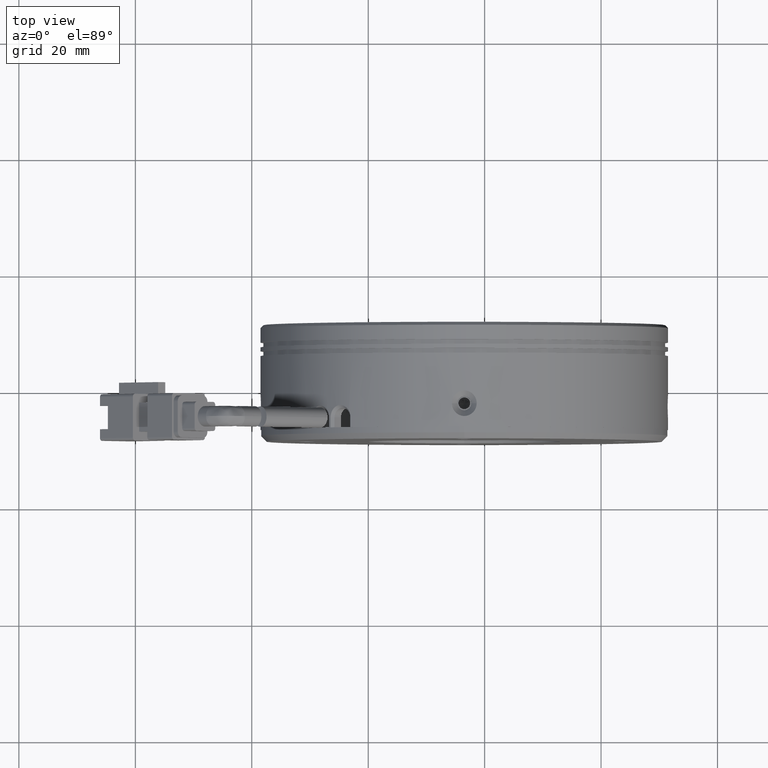
[diagram: clean part render]
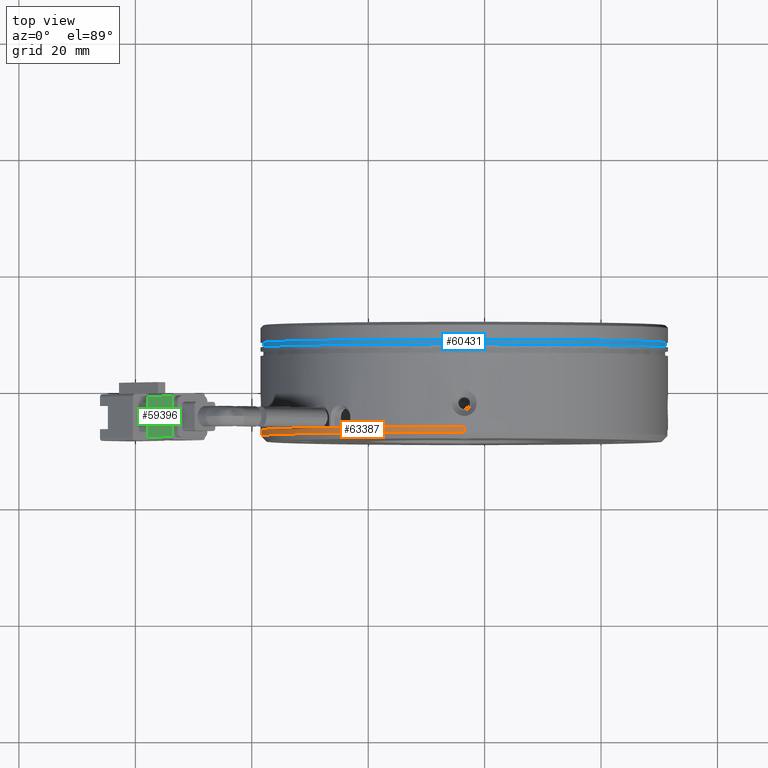
[diagram: same view with three faces highlighted in distinct colors, each labeled with its STEP entity id]
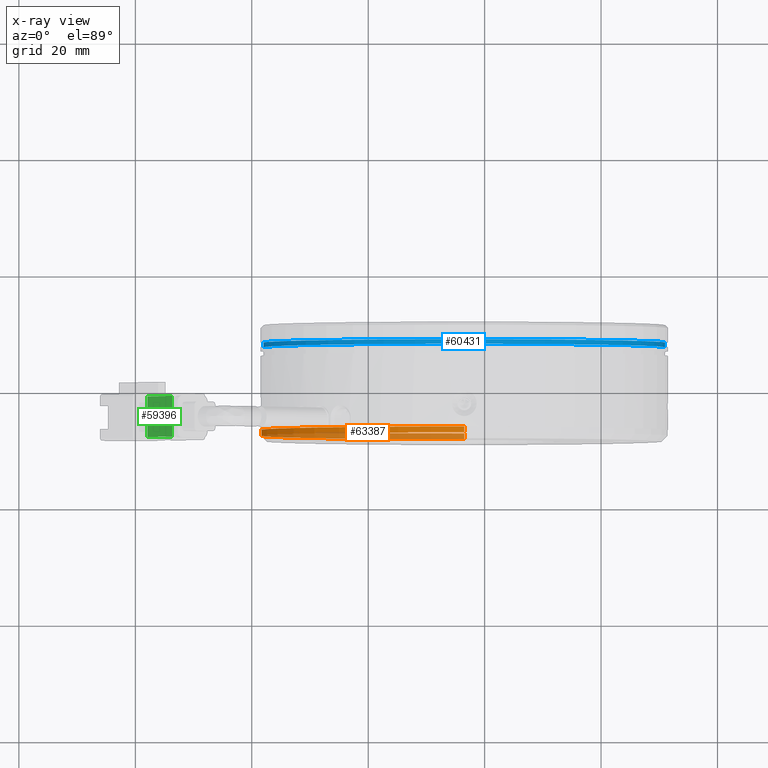
[diagram: x-ray of the same camera — body ghosted, the three highlighted faces saturated]
A machine part, top view with three faces highlighted in distinct colors.
The next image is the same camera in x-ray (body ghosted, the three faces saturated) — at least one of them is partly hidden behind the body in this view.
Their STEP definitions:

[orange] entity #63387 — the highlighted cylindrical surface (partial cylindrical patch) has radius 35 mm, axis along (-0, 1, -0).
#2203 = EDGE_CURVE ( 'NONE', #85091, #17409, #64279, .T. ) ;
#6455 = ORIENTED_EDGE ( 'NONE', *, *, #71386, .T. ) ;
#9520 = LINE ( 'NONE', #17303, #46748 ) ;
#14589 = CARTESIAN_POINT ( 'NONE',  ( -3.499229287090534200, 49.67432128801908700, -34.99999999999999300 ) ) ;
#16565 = CARTESIAN_POINT ( 'NONE',  ( -3.499229287090538600, 33.07623868994505000, 0.0000000000000000000 ) ) ;
#17303 = CARTESIAN_POINT ( 'NONE',  ( -3.499229287090538600, 49.67432128801908700, 34.99999999999999300 ) ) ;
#17409 = VERTEX_POINT ( 'NONE', #47789 ) ;
#17876 = CARTESIAN_POINT ( 'NONE',  ( -3.499229287090538600, 32.07623868994506500, 0.0000000000000000000 ) ) ;
#20009 = ORIENTED_EDGE ( 'NONE', *, *, #87400, .F. ) ;
#20289 = FACE_OUTER_BOUND ( 'NONE', #23436, .T. ) ;
#23436 = EDGE_LOOP ( 'NONE', ( #20009, #30836, #6455, #33496 ) ) ;
#23576 = DIRECTION ( 'NONE',  ( 0.0000000000000000000, 0.0000000000000000000, 1.000000000000000000 ) ) ;
#24912 = DIRECTION ( 'NONE',  ( 0.0000000000000000000, 0.0000000000000000000, 1.000000000000000000 ) ) ;
#27550 = CARTESIAN_POINT ( 'NONE',  ( -3.499229287090534200, 32.07623868994506500, -34.99999999999999300 ) ) ;
#28659 = DIRECTION ( 'NONE',  ( -0.0000000000000000000, 1.000000000000000000, -0.0000000000000000000 ) ) ;
#30836 = ORIENTED_EDGE ( 'NONE', *, *, #64595, .F. ) ;
#33496 = ORIENTED_EDGE ( 'NONE', *, *, #2203, .T. ) ;
#35325 = DIRECTION ( 'NONE',  ( 0.0000000000000000000, 0.0000000000000000000, 1.000000000000000000 ) ) ;
#40114 = LINE ( 'NONE', #14589, #75141 ) ;
#42018 = DIRECTION ( 'NONE',  ( -0.0000000000000000000, 1.000000000000000000, -0.0000000000000000000 ) ) ;
#44802 = DIRECTION ( 'NONE',  ( -0.0000000000000000000, 1.000000000000000000, -0.0000000000000000000 ) ) ;
#46748 = VECTOR ( 'NONE', #44802, 1000.000000000000000 ) ;
#47789 = CARTESIAN_POINT ( 'NONE',  ( -3.499229287090534200, 33.07623868994505000, -34.99999999999999300 ) ) ;
#59207 = VERTEX_POINT ( 'NONE', #27550 ) ;
#59461 = CIRCLE ( 'NONE', #64140, 34.99999999999999300 ) ;
#63387 = ADVANCED_FACE ( 'NONE', ( #20289 ), #67300, .T. ) ;
#63573 = VERTEX_POINT ( 'NONE', #79038 ) ;
#64020 = AXIS2_PLACEMENT_3D ( 'NONE', #77202, #42018, #35325 ) ;
#64140 = AXIS2_PLACEMENT_3D ( 'NONE', #17876, #66772, #24912 ) ;
#64279 = CIRCLE ( 'NONE', #82081, 34.99999999999999300 ) ;
#64595 = EDGE_CURVE ( 'NONE', #63573, #59207, #59461, .T. ) ;
#65445 = DIRECTION ( 'NONE',  ( 0.0000000000000000000, -1.000000000000000000, 0.0000000000000000000 ) ) ;
#66772 = DIRECTION ( 'NONE',  ( 0.0000000000000000000, -1.000000000000000000, 0.0000000000000000000 ) ) ;
#67300 = CYLINDRICAL_SURFACE ( 'NONE', #64020, 34.99999999999999300 ) ;
#69622 = CARTESIAN_POINT ( 'NONE',  ( -3.499229287090538600, 33.07623868994505000, 34.99999999999999300 ) ) ;
#71386 = EDGE_CURVE ( 'NONE', #63573, #85091, #9520, .T. ) ;
#75141 = VECTOR ( 'NONE', #28659, 1000.000000000000000 ) ;
#77202 = CARTESIAN_POINT ( 'NONE',  ( -3.499229287090538600, 49.67432128801908700, 0.0000000000000000000 ) ) ;
#79038 = CARTESIAN_POINT ( 'NONE',  ( -3.499229287090538600, 32.07623868994506500, 34.99999999999999300 ) ) ;
#82081 = AXIS2_PLACEMENT_3D ( 'NONE', #16565, #65445, #23576 ) ;
#85091 = VERTEX_POINT ( 'NONE', #69622 ) ;
#87400 = EDGE_CURVE ( 'NONE', #59207, #17409, #40114, .T. ) ;

[blue] entity #60431 — the highlighted cylindrical surface (partial cylindrical patch) has radius 34.5 mm, axis along (0, -1, 0).
#2250 = VERTEX_POINT ( 'NONE', #72791 ) ;
#2454 = CARTESIAN_POINT ( 'NONE',  ( -3.499229287090496400, 33.07623868994505000, -6.938893903907228400E-015 ) ) ;
#2779 = CIRCLE ( 'NONE', #14152, 34.50000000000000700 ) ;
#3738 = CARTESIAN_POINT ( 'NONE',  ( -3.499229287090496400, 48.07623868994505000, -6.938893903907228400E-015 ) ) ;
#7665 = EDGE_CURVE ( 'NONE', #50806, #39666, #53244, .T. ) ;
#9780 = DIRECTION ( 'NONE',  ( 1.000000000000000000, 0.0000000000000000000, 1.942890293094023700E-016 ) ) ;
#10745 = DIRECTION ( 'NONE',  ( 1.000000000000000000, 0.0000000000000000000, 1.942890293094023700E-016 ) ) ;
#14152 = AXIS2_PLACEMENT_3D ( 'NONE', #3738, #52620, #10745 ) ;
#23525 = CARTESIAN_POINT ( 'NONE',  ( -37.99922928709050800, 33.07623868994505000, -9.416833958023240500E-015 ) ) ;
#28289 = ORIENTED_EDGE ( 'NONE', *, *, #7665, .F. ) ;
#32427 = EDGE_CURVE ( 'NONE', #50806, #73390, #2779, .T. ) ;
#32491 = VECTOR ( 'NONE', #85294, 1000.000000000000000 ) ;
#32686 = DIRECTION ( 'NONE',  ( 0.0000000000000000000, -1.000000000000000000, 0.0000000000000000000 ) ) ;
#36127 = VECTOR ( 'NONE', #86526, 1000.000000000000000 ) ;
#37234 = CIRCLE ( 'NONE', #68501, 34.50000000000000700 ) ;
#39666 = VERTEX_POINT ( 'NONE', #58672 ) ;
#42321 = ORIENTED_EDGE ( 'NONE', *, *, #65568, .F. ) ;
#49009 = EDGE_CURVE ( 'NONE', #73390, #2250, #73360, .T. ) ;
#50068 = ORIENTED_EDGE ( 'NONE', *, *, #49009, .T. ) ;
#50806 = VERTEX_POINT ( 'NONE', #63345 ) ;
#52620 = DIRECTION ( 'NONE',  ( 0.0000000000000000000, -1.000000000000000000, 0.0000000000000000000 ) ) ;
#53244 = LINE ( 'NONE', #64483, #32491 ) ;
#57008 = CYLINDRICAL_SURFACE ( 'NONE', #77155, 34.50000000000000700 ) ;
#58672 = CARTESIAN_POINT ( 'NONE',  ( 31.00077071290951400, 47.27623868994506000, -2.359223927328452200E-016 ) ) ;
#60431 = ADVANCED_FACE ( 'NONE', ( #65809 ), #57008, .T. ) ;
#63345 = CARTESIAN_POINT ( 'NONE',  ( 31.00077071290951400, 48.07623868994505000, -2.359223927328452200E-016 ) ) ;
#64238 = ORIENTED_EDGE ( 'NONE', *, *, #32427, .T. ) ;
#64483 = CARTESIAN_POINT ( 'NONE',  ( 31.00077071290951400, 33.07623868994505000, -2.359223927328452200E-016 ) ) ;
#65568 = EDGE_CURVE ( 'NONE', #39666, #2250, #37234, .T. ) ;
#65809 = FACE_OUTER_BOUND ( 'NONE', #89769, .T. ) ;
#68501 = AXIS2_PLACEMENT_3D ( 'NONE', #74570, #32686, #81575 ) ;
#72471 = DIRECTION ( 'NONE',  ( 0.0000000000000000000, -1.000000000000000000, 0.0000000000000000000 ) ) ;
#72791 = CARTESIAN_POINT ( 'NONE',  ( -37.99922928709050800, 47.27623868994506000, -9.416833958023240500E-015 ) ) ;
#72849 = CARTESIAN_POINT ( 'NONE',  ( -37.99922928709050800, 48.07623868994505000, -9.416833958023240500E-015 ) ) ;
#73360 = LINE ( 'NONE', #23525, #36127 ) ;
#73390 = VERTEX_POINT ( 'NONE', #72849 ) ;
#74570 = CARTESIAN_POINT ( 'NONE',  ( -3.499229287090496400, 47.27623868994506000, -6.938893903907228400E-015 ) ) ;
#77155 = AXIS2_PLACEMENT_3D ( 'NONE', #2454, #72471, #9780 ) ;
#81575 = DIRECTION ( 'NONE',  ( 1.000000000000000000, 0.0000000000000000000, 1.942890293094023700E-016 ) ) ;
#85294 = DIRECTION ( 'NONE',  ( 0.0000000000000000000, -1.000000000000000000, 0.0000000000000000000 ) ) ;
#86526 = DIRECTION ( 'NONE',  ( 0.0000000000000000000, -1.000000000000000000, 0.0000000000000000000 ) ) ;
#89769 = EDGE_LOOP ( 'NONE', ( #64238, #50068, #42321, #28289 ) ) ;

[green] entity #59396 — the highlighted planar face has unit normal (0.7071, 0, -0.7071).
#275 = AXIS2_PLACEMENT_3D ( 'NONE', #2435, #51352, #9454 ) ;
#2435 = CARTESIAN_POINT ( 'NONE',  ( -53.70381075133520500, 38.27623868994504600, 37.47665940288705100 ) ) ;
#3339 = CARTESIAN_POINT ( 'NONE',  ( -53.70381075133520500, 38.27623868994506800, 37.47665940288705100 ) ) ;
#9454 = DIRECTION ( 'NONE',  ( -0.7071067811865485700, 8.048144702619595500E-016, -0.7071067811865465700 ) ) ;
#9653 = CARTESIAN_POINT ( 'NONE',  ( -53.70381075133520500, 31.27623868994505000, 37.47665940288704400 ) ) ;
#13509 = VECTOR ( 'NONE', #54885, 1000.000000000000000 ) ;
#21705 = EDGE_CURVE ( 'NONE', #72100, #87528, #82625, .T. ) ;
#23178 = VERTEX_POINT ( 'NONE', #70569 ) ;
#24337 = CARTESIAN_POINT ( 'NONE',  ( -57.94645143845453100, 38.27623868994506000, 33.23401871576781000 ) ) ;
#25623 = LINE ( 'NONE', #3339, #79220 ) ;
#26768 = ORIENTED_EDGE ( 'NONE', *, *, #27519, .F. ) ;
#26913 = EDGE_CURVE ( 'NONE', #63439, #72100, #32169, .T. ) ;
#27519 = EDGE_CURVE ( 'NONE', #87528, #23178, #47346, .T. ) ;
#29888 = CARTESIAN_POINT ( 'NONE',  ( -57.94645143845455200, 31.27623868994505700, 33.23401871576776800 ) ) ;
#32169 = LINE ( 'NONE', #40870, #13509 ) ;
#32415 = FACE_OUTER_BOUND ( 'NONE', #63117, .T. ) ;
#37000 = PLANE ( 'NONE',  #275 ) ;
#39712 = ORIENTED_EDGE ( 'NONE', *, *, #26913, .F. ) ;
#39771 = EDGE_CURVE ( 'NONE', #23178, #63439, #25623, .T. ) ;
#40870 = CARTESIAN_POINT ( 'NONE',  ( -53.70381075133520500, 38.27623868994504600, 37.47665940288705100 ) ) ;
#42191 = ORIENTED_EDGE ( 'NONE', *, *, #21705, .F. ) ;
#43248 = CARTESIAN_POINT ( 'NONE',  ( -53.70381075133520500, 38.27623868994505300, 37.47665940288705100 ) ) ;
#47346 = LINE ( 'NONE', #24337, #65905 ) ;
#51352 = DIRECTION ( 'NONE',  ( 0.7071067811865465700, 2.632660169627591600E-017, -0.7071067811865485700 ) ) ;
#51860 = DIRECTION ( 'NONE',  ( -0.7071067811865485700, 8.048144702619595500E-016, -0.7071067811865465700 ) ) ;
#54885 = DIRECTION ( 'NONE',  ( -5.504740509342574500E-016, -1.000000000000000000, -5.877054881043237200E-016 ) ) ;
#55759 = ORIENTED_EDGE ( 'NONE', *, *, #39771, .F. ) ;
#59396 = ADVANCED_FACE ( 'NONE', ( #32415 ), #37000, .F. ) ;
#63117 = EDGE_LOOP ( 'NONE', ( #42191, #39712, #55759, #26768 ) ) ;
#63439 = VERTEX_POINT ( 'NONE', #43248 ) ;
#65905 = VECTOR ( 'NONE', #66201, 1000.000000000000000 ) ;
#66201 = DIRECTION ( 'NONE',  ( 1.145450188838179900E-015, 1.000000000000000000, 1.251682674090831700E-015 ) ) ;
#69100 = CARTESIAN_POINT ( 'NONE',  ( -53.70381075133523300, 31.27623868994505000, 37.47665940288700900 ) ) ;
#70569 = CARTESIAN_POINT ( 'NONE',  ( -57.94645143845454500, 38.27623868994506000, 33.23401871576778200 ) ) ;
#72100 = VERTEX_POINT ( 'NONE', #69100 ) ;
#73374 = DIRECTION ( 'NONE',  ( 0.7071067811865485700, -8.048144702619595500E-016, 0.7071067811865465700 ) ) ;
#73885 = VECTOR ( 'NONE', #51860, 1000.000000000000000 ) ;
#79220 = VECTOR ( 'NONE', #73374, 1000.000000000000000 ) ;
#82625 = LINE ( 'NONE', #9653, #73885 ) ;
#87528 = VERTEX_POINT ( 'NONE', #29888 ) ;